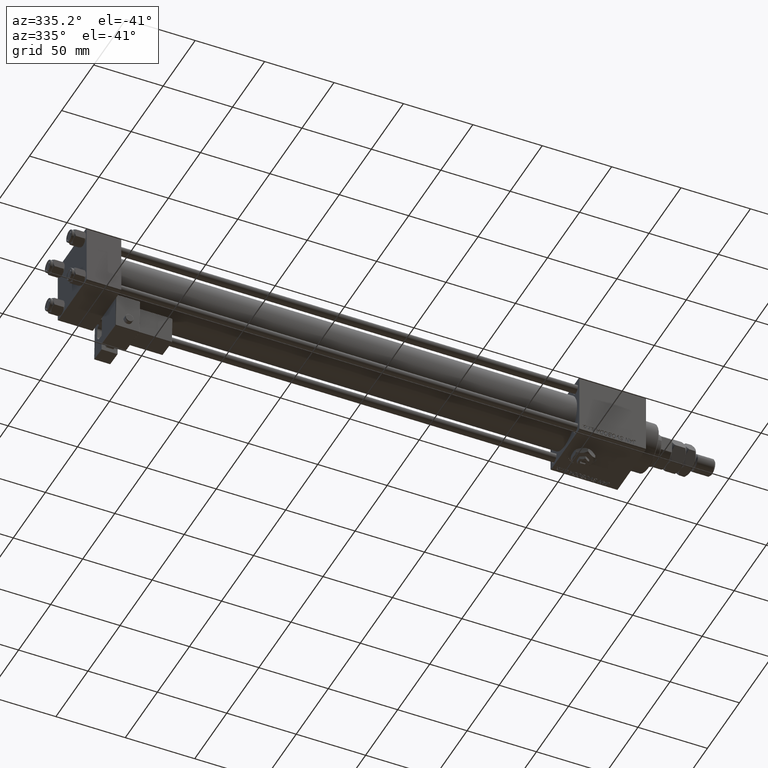
[diagram: clean part render]
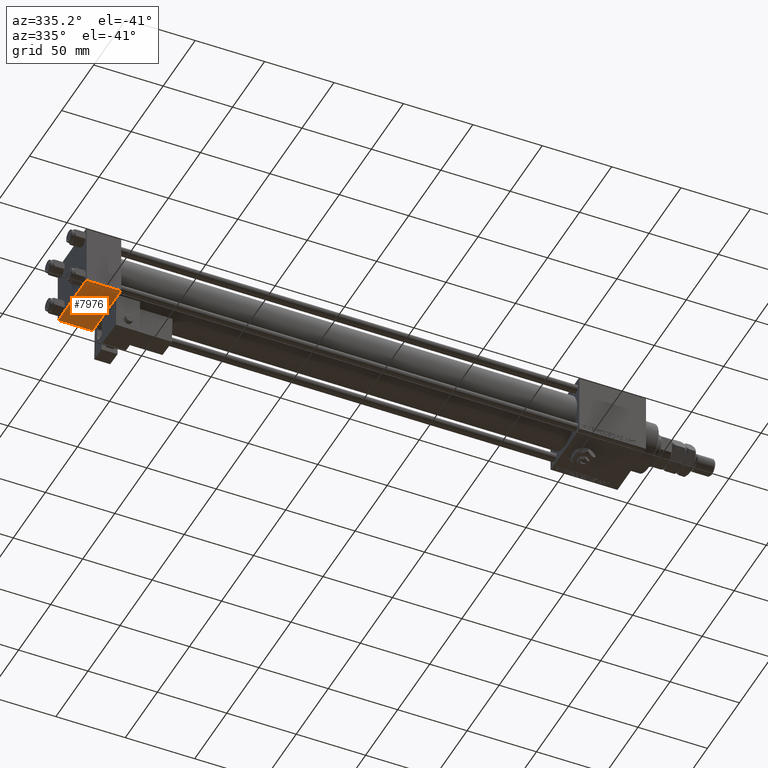
[diagram: same view with one face highlighted and labeled with its STEP entity id]
A machine part, auxiliary view. The second image highlights one B-rep face of the part: STEP entity #7976.
In plain terms, the highlighted planar face has unit normal (0, 0, -1).
Its self-contained STEP definition (entity closure, byte-faithful):
#193 = VERTEX_POINT ( 'NONE', #41235 ) ;
#1385 = VERTEX_POINT ( 'NONE', #38440 ) ;
#5958 = ORIENTED_EDGE ( 'NONE', *, *, #25670, .F. ) ;
#6146 = DIRECTION ( 'NONE',  ( 1.000000000000000000, 0.000000000000000000, 0.000000000000000000 ) ) ;
#7976 = ADVANCED_FACE ( 'NONE', ( #33417 ), #12024, .T. ) ;
#8925 = AXIS2_PLACEMENT_3D ( 'NONE', #29186, #42142, #37913 ) ;
#9091 = VERTEX_POINT ( 'NONE', #37008 ) ;
#12024 = PLANE ( 'NONE',  #8925 ) ;
#12529 = CARTESIAN_POINT ( 'NONE',  ( 25.00000000000000000, 22.50000000000000000, -22.49999999999999645 ) ) ;
#12960 = LINE ( 'NONE', #21673, #53543 ) ;
#14598 = CARTESIAN_POINT ( 'NONE',  ( 25.00000000000000000, 21.99999999999999289, -22.49999999999999645 ) ) ;
#15682 = VERTEX_POINT ( 'NONE', #55250 ) ;
#17578 = LINE ( 'NONE', #12529, #54251 ) ;
#18124 = LINE ( 'NONE', #48241, #32817 ) ;
#21673 = CARTESIAN_POINT ( 'NONE',  ( 0.000000000000000000, -21.99999999999998579, -22.50000000000000711 ) ) ;
#25670 = EDGE_CURVE ( 'NONE', #1385, #193, #18124, .T. ) ;
#25904 = ORIENTED_EDGE ( 'NONE', *, *, #41740, .T. ) ;
#27317 = EDGE_CURVE ( 'NONE', #9091, #193, #12960, .T. ) ;
#29186 = CARTESIAN_POINT ( 'NONE',  ( 25.00000000000000000, 22.50000000000000000, -22.49999999999999645 ) ) ;
#31527 = VECTOR ( 'NONE', #6146, 1000.000000000000000 ) ;
#32817 = VECTOR ( 'NONE', #52473, 1000.000000000000000 ) ;
#33417 = FACE_OUTER_BOUND ( 'NONE', #49751, .T. ) ;
#37008 = CARTESIAN_POINT ( 'NONE',  ( 25.00000000000000000, -21.99999999999997158, -22.50000000000000711 ) ) ;
#37913 = DIRECTION ( 'NONE',  ( 0.000000000000000000, 1.000000000000000000, 2.312964634635742957E-16 ) ) ;
#38440 = CARTESIAN_POINT ( 'NONE',  ( 0.000000000000000000, 21.99999999999999289, -22.49999999999999645 ) ) ;
#39391 = DIRECTION ( 'NONE',  ( -1.000000000000000000, 0.000000000000000000, 0.000000000000000000 ) ) ;
#40933 = ORIENTED_EDGE ( 'NONE', *, *, #27317, .T. ) ;
#41235 = CARTESIAN_POINT ( 'NONE',  ( 0.000000000000000000, -21.99999999999997158, -22.50000000000000711 ) ) ;
#41740 = EDGE_CURVE ( 'NONE', #1385, #15682, #53187, .T. ) ;
#42142 = DIRECTION ( 'NONE',  ( 0.000000000000000000, 2.312964634635742957E-16, -1.000000000000000000 ) ) ;
#42423 = ORIENTED_EDGE ( 'NONE', *, *, #48550, .T. ) ;
#48241 = CARTESIAN_POINT ( 'NONE',  ( 0.000000000000000000, 22.50000000000000000, -22.49999999999999645 ) ) ;
#48550 = EDGE_CURVE ( 'NONE', #15682, #9091, #17578, .T. ) ;
#49751 = EDGE_LOOP ( 'NONE', ( #5958, #25904, #42423, #40933 ) ) ;
#51390 = DIRECTION ( 'NONE',  ( 0.000000000000000000, -1.000000000000000000, -2.312964634635742957E-16 ) ) ;
#52473 = DIRECTION ( 'NONE',  ( 0.000000000000000000, -1.000000000000000000, -2.312964634635742957E-16 ) ) ;
#53187 = LINE ( 'NONE', #14598, #31527 ) ;
#53543 = VECTOR ( 'NONE', #39391, 1000.000000000000000 ) ;
#54251 = VECTOR ( 'NONE', #51390, 1000.000000000000000 ) ;
#55250 = CARTESIAN_POINT ( 'NONE',  ( 25.00000000000000000, 21.99999999999999289, -22.49999999999999645 ) ) ;